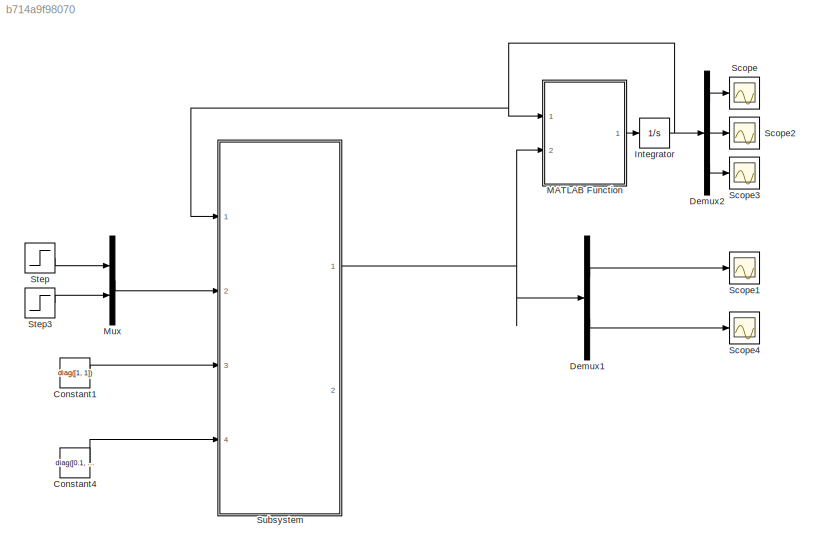
MODEL slx_b714a9f98070
KIND model
CONFIG AbsTol = auto
CONFIG EnableMultiTasking = off
CONFIG FixedStep = 1e-2
CONFIG MaxStep = auto
CONFIG MinStep = auto
CONFIG RelTol = 1e-3
CONFIG SampleTimeConstraint = Unconstrained
CONFIG Solver = FixedStepAuto
CONFIG SolverName = FixedStepAuto
CONFIG StartTime = 0.0
CONFIG StopTime = 100
BLOCK [Constant] Constant1
  Value = diag([1, 1])
BLOCK [Constant] Constant4
  Value = diag([0.1, 0.1])
BLOCK [Demux] Demux1
  Outputs = 2
  Ports = [1, 2]
BLOCK [Demux] Demux2
  Outputs = 3
  Ports = [1, 3]
BLOCK [Integrator] Integrator
  Ports = [1, 1]
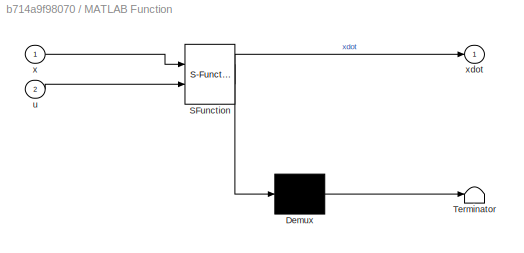
BLOCK [SubSystem] MATLAB Function
  ErrorFcn = Stateflow.Translate.translate
  PermitHierarchicalResolution = ExplicitOnly
  Ports = [2, 1]
  RequestExecContextInheritance = off
  SFBlockType = MATLAB Function
  TreatAsAtomicUnit = on
BLOCK [Demux] MATLAB Function/ Demux 
  Outputs = 1
  Ports = [1, 1]
BLOCK [S-Function] MATLAB Function/ SFunction 
  EnableBusSupport = on
  FunctionName = sf_sfun
  PortCounts = [2 2]
  Ports = [2, 2]
  SFcnIsStateOwnerBlock = off
  SFunctionDeploymentMode = off
  Tag = Stateflow S-Function 2
BLOCK [Terminator] MATLAB Function/ Terminator 
BLOCK [Inport] MATLAB Function/u
  Port = 2
BLOCK [Inport] MATLAB Function/x
BLOCK [Outport] MATLAB Function/xdot
BLOCK [Mux] Mux
  DisplayOption = bar
  Inputs = 2
  Ports = [2, 1]
BLOCK [Scope] Scope
  Floating = off
  NumInputPorts = 1
  Ports = [1]
  ScopeSpecificationString = Simulink.scopes.TimeScopeBlockCfg('CurrentConfiguration', extmgr.ConfigurationSet(extmgr.Configuration('Core','General UI',true),extmgr.Configuration('Core','Source UI',true),extmgr.Configuration('Sources','WiredSimulink',true,'DataLoggingVariableName','ScopeData1'),extmgr.Configuration('Visuals','Time Domain',true,'SerializedDisplays',{struct('MinYLimReal','-5.59122','MaxYLimReal','4.26944','YLab...<+1437ch>
BLOCK [Scope] Scope1
  Floating = off
  NumInputPorts = 1
  Ports = [1]
  ScopeSpecificationString = Simulink.scopes.TimeScopeBlockCfg('CurrentConfiguration', extmgr.ConfigurationSet(extmgr.Configuration('Core','General UI',true),extmgr.Configuration('Core','Source UI',true),extmgr.Configuration('Sources','WiredSimulink',true),extmgr.Configuration('Visuals','Time Domain',true,'SerializedDisplays',{struct('MinYLimReal','-24.7258','MaxYLimReal','33.71474','YLabelReal','','MinYLimMag','0.00000','Max...<+1550ch>
BLOCK [Scope] Scope2
  Floating = off
  NumInputPorts = 1
  Ports = [1]
  ScopeSpecificationString = Simulink.scopes.TimeScopeBlockCfg('CurrentConfiguration', extmgr.ConfigurationSet(extmgr.Configuration('Core','General UI',true),extmgr.Configuration('Core','Source UI',true),extmgr.Configuration('Sources','WiredSimulink',true,'DataLoggingVariableName','ScopeData2'),extmgr.Configuration('Visuals','Time Domain',true,'SerializedDisplays',{struct('MinYLimReal','-4.39525','MaxYLimReal','39.55723','YLa...<+1470ch>
BLOCK [Scope] Scope3
  Floating = off
  NumInputPorts = 1
  Ports = [1]
  ScopeSpecificationString = Simulink.scopes.TimeScopeBlockCfg('CurrentConfiguration', extmgr.ConfigurationSet(extmgr.Configuration('Core','General UI',true),extmgr.Configuration('Core','Source UI',true),extmgr.Configuration('Sources','WiredSimulink',true,'DataLoggingVariableName','ScopeData3'),extmgr.Configuration('Visuals','Time Domain',true,'SerializedDisplays',{struct('MinYLimReal','-0.94269','MaxYLimReal','8.48421','YLab...<+1441ch>
BLOCK [Scope] Scope4
  Floating = off
  NumInputPorts = 1
  Ports = [1]
  ScopeSpecificationString = Simulink.scopes.TimeScopeBlockCfg('CurrentConfiguration', extmgr.ConfigurationSet(extmgr.Configuration('Core','General UI',true),extmgr.Configuration('Core','Source UI',true),extmgr.Configuration('Sources','WiredSimulink',true,'DataLoggingVariableName','ScopeData4'),extmgr.Configuration('Visuals','Time Domain',true,'SerializedDisplays',{struct('MinYLimReal','0.58072','MaxYLimReal','3.26881','YLabe...<+1583ch>
BLOCK [Step] Step
  Before = 0.5
  SampleTime = 0
  Time = 50
BLOCK [Step] Step3
  After = 35
  Before = 25
  SampleTime = 0
  Time = 75
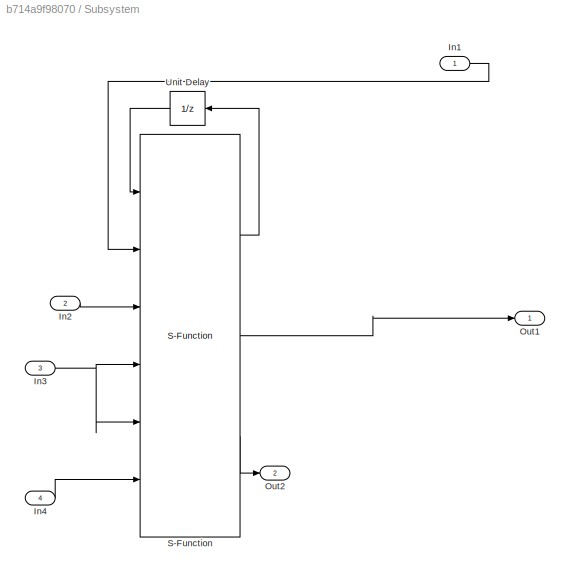
BLOCK [SubSystem] Subsystem
  Ports = [4, 2]
  RequestExecContextInheritance = off
  SystemSampleTime = 0.1
  TreatAsAtomicUnit = on
BLOCK [Inport] Subsystem/In1
BLOCK [Inport] Subsystem/In2
  Port = 2
BLOCK [Inport] Subsystem/In3
  Port = 3
BLOCK [Inport] Subsystem/In4
  Port = 4
BLOCK [Outport] Subsystem/Out1
BLOCK [Outport] Subsystem/Out2
  Port = 2
BLOCK [S-Function] Subsystem/S-Function
  EnableBusSupport = off
  FunctionName = casadi_fun
  Parameters = 'MPC_func.casadi', 'MPC_func'
  Ports = [6, 3]
  SFcnIsStateOwnerBlock = off
  SFunctionDeploymentMode = off
BLOCK [UnitDelay] Subsystem/Unit Delay
  HasFrameUpgradeWarning = on
  SampleTime = -1
LINE Constant1:1 -> Subsystem:3
LINE Constant4:1 -> Subsystem:4
LINE Demux1:1 -> Scope1:1
LINE Demux1:2 -> Scope4:1
LINE Demux2:1 -> Scope:1
LINE Demux2:2 -> Scope2:1
LINE Demux2:3 -> Scope3:1
NET Integrator:1 -> Demux2:1, MATLAB Function:1, Subsystem:1
LINE MATLAB Function:1 -> Integrator:1
LINE Mux:1 -> Subsystem:2
LINE Step3:1 -> Mux:2
LINE Step:1 -> Mux:1
LINE Subsystem/In1:1 -> Subsystem/S-Function:2
LINE Subsystem/In2:1 -> Subsystem/S-Function:3
NET Subsystem/In3:1 -> Subsystem/S-Function:4, Subsystem/S-Function:5
LINE Subsystem/In4:1 -> Subsystem/S-Function:6
LINE Subsystem/S-Function:1 -> Subsystem/Unit Delay:1
LINE Subsystem/S-Function:2 -> Subsystem/Out1:1
LINE Subsystem/S-Function:3 -> Subsystem/Out2:1
LINE Subsystem/Unit Delay:1 -> Subsystem/S-Function:1
NET Subsystem:1 -> Demux1:1, MATLAB Function:2
note: NET lines group one-source signal fan-out (src -> all destinations, sorted); 1:1 wires keep LINE
CHART MATLAB Function states=1 transitions=1
  STATE_LABEL 'eML_blk_kernel()'
  STATE_LABEL 'SCRIPT:\nfunction xdot = fcn(x, u)\n    xdot = zeros(3, 1);\n    A = [-0.4, 0.1, -2.0;\n        0, -0.3, 4.0;\n        1.0, 0.0, 0.0];\n    B = [1, 1;\n        0, 1;\n        1, 0];\n    \n    xdot = A * x + B * u;\nend\n'
CHART  states=0 transitions=0
